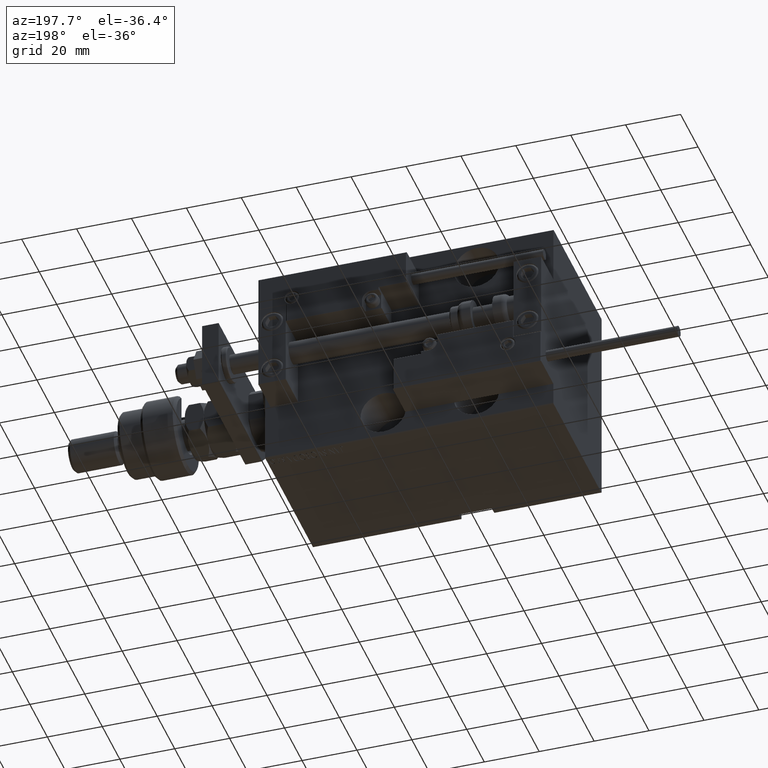
[diagram: clean part render]
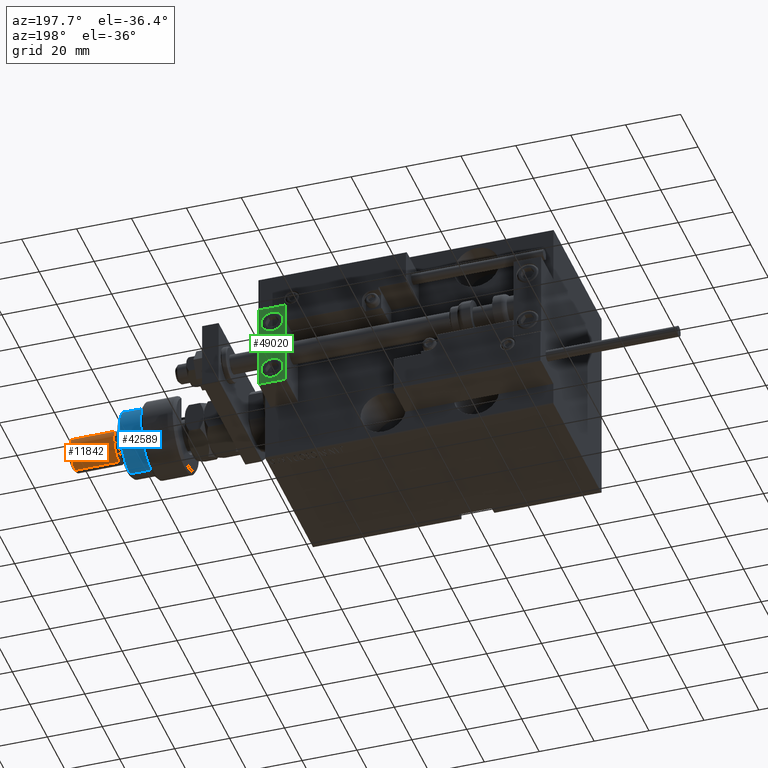
[diagram: same view with three faces highlighted in distinct colors, each labeled with its STEP entity id]
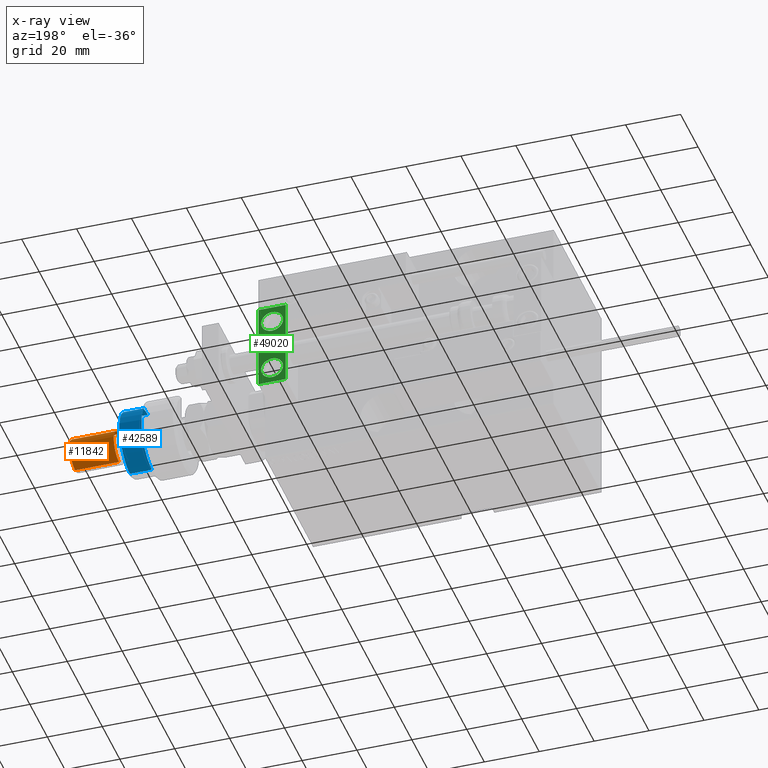
[diagram: x-ray of the same camera — body ghosted, the three highlighted faces saturated]
A machine part, auxiliary view with three faces highlighted in distinct colors.
The next image is the same camera in x-ray (body ghosted, the three faces saturated) — at least one of them is partly hidden behind the body in this view.
Their STEP definitions:

[orange] entity #11842 — the highlighted cylindrical surface (edge-blend (fillet) strip) has radius 6 mm, axis along (-1, -0, 0).
#4431 = VERTEX_POINT ( 'NONE', #51297 ) ;
#6143 = VERTEX_POINT ( 'NONE', #51937 ) ;
#9420 = AXIS2_PLACEMENT_3D ( 'NONE', #33751, #46865, #50084 ) ;
#10538 = ORIENTED_EDGE ( 'NONE', *, *, #32397, .F. ) ;
#11548 = DIRECTION ( 'NONE',  ( -0.000000000000000000, -0.000000000000000000, -1.000000000000000000 ) ) ;
#11842 = ADVANCED_FACE ( 'NONE', ( #25434 ), #18181, .T. ) ;
#12803 = CIRCLE ( 'NONE', #16218, 6.000000000000000888 ) ;
#12956 = DIRECTION ( 'NONE',  ( -0.000000000000000000, -0.000000000000000000, 1.000000000000000000 ) ) ;
#13351 = DIRECTION ( 'NONE',  ( -0.000000000000000000, -0.000000000000000000, -1.000000000000000000 ) ) ;
#15024 = LINE ( 'NONE', #31375, #16526 ) ;
#16218 = AXIS2_PLACEMENT_3D ( 'NONE', #44830, #12956, #49904 ) ;
#16526 = VECTOR ( 'NONE', #11548, 1000.000000000000000 ) ;
#18181 = CYLINDRICAL_SURFACE ( 'NONE', #9420, 6.000000000000000888 ) ;
#18900 = AXIS2_PLACEMENT_3D ( 'NONE', #34538, #34012, #30772 ) ;
#20516 = VERTEX_POINT ( 'NONE', #29184 ) ;
#23869 = VECTOR ( 'NONE', #13351, 1000.000000000000000 ) ;
#25434 = FACE_OUTER_BOUND ( 'NONE', #32472, .T. ) ;
#25938 = EDGE_CURVE ( 'NONE', #4431, #34535, #15024, .T. ) ;
#27790 = ORIENTED_EDGE ( 'NONE', *, *, #25938, .T. ) ;
#29184 = CARTESIAN_POINT ( 'NONE',  ( -6.000000000000000888, 0.000000000000000000, 24.99999999999999645 ) ) ;
#30772 = DIRECTION ( 'NONE',  ( 1.000000000000000000, 0.000000000000000000, 0.000000000000000000 ) ) ;
#31375 = CARTESIAN_POINT ( 'NONE',  ( 6.000000000000000888, 7.347880794884120722E-16, 41.99999999999999289 ) ) ;
#32397 = EDGE_CURVE ( 'NONE', #6143, #20516, #49770, .T. ) ;
#32472 = EDGE_LOOP ( 'NONE', ( #40247, #27790, #43140, #10538 ) ) ;
#33074 = EDGE_CURVE ( 'NONE', #34535, #20516, #12803, .T. ) ;
#33751 = CARTESIAN_POINT ( 'NONE',  ( 0.000000000000000000, 0.000000000000000000, 41.99999999999999289 ) ) ;
#34012 = DIRECTION ( 'NONE',  ( 0.000000000000000000, 0.000000000000000000, -1.000000000000000000 ) ) ;
#34535 = VERTEX_POINT ( 'NONE', #47884 ) ;
#34538 = CARTESIAN_POINT ( 'NONE',  ( 0.000000000000000000, 0.000000000000000000, 40.99999999999997868 ) ) ;
#37469 = CARTESIAN_POINT ( 'NONE',  ( -6.000000000000000888, 0.000000000000000000, 41.99999999999999289 ) ) ;
#39033 = EDGE_CURVE ( 'NONE', #6143, #4431, #42049, .T. ) ;
#40247 = ORIENTED_EDGE ( 'NONE', *, *, #39033, .T. ) ;
#42049 = CIRCLE ( 'NONE', #18900, 6.000000000000000888 ) ;
#43140 = ORIENTED_EDGE ( 'NONE', *, *, #33074, .T. ) ;
#44830 = CARTESIAN_POINT ( 'NONE',  ( 0.000000000000000000, 0.000000000000000000, 24.99999999999999645 ) ) ;
#46865 = DIRECTION ( 'NONE',  ( -0.000000000000000000, -0.000000000000000000, -1.000000000000000000 ) ) ;
#47884 = CARTESIAN_POINT ( 'NONE',  ( 6.000000000000000888, 7.347880794884120722E-16, 24.99999999999999645 ) ) ;
#49770 = LINE ( 'NONE', #37469, #23869 ) ;
#49904 = DIRECTION ( 'NONE',  ( 1.000000000000000000, 0.000000000000000000, 0.000000000000000000 ) ) ;
#50084 = DIRECTION ( 'NONE',  ( -1.000000000000000000, 0.000000000000000000, 0.000000000000000000 ) ) ;
#51297 = CARTESIAN_POINT ( 'NONE',  ( 6.000000000000000888, 7.347880794884120722E-16, 40.99999999999997868 ) ) ;
#51937 = CARTESIAN_POINT ( 'NONE',  ( -6.000000000000000888, 0.000000000000000000, 40.99999999999997868 ) ) ;

[blue] entity #42589 — the highlighted cylindrical surface (edge-blend (fillet) strip) has radius 12 mm, axis along (-1, -0, 0).
#5 = DIRECTION ( 'NONE',  ( 0.000000000000000000, 0.000000000000000000, -1.000000000000000000 ) ) ;
#263 = DIRECTION ( 'NONE',  ( 1.000000000000000000, 0.000000000000000000, 0.000000000000000000 ) ) ;
#461 = ORIENTED_EDGE ( 'NONE', *, *, #16028, .T. ) ;
#836 = VERTEX_POINT ( 'NONE', #22392 ) ;
#2521 = CIRCLE ( 'NONE', #14493, 12.00000000000000178 ) ;
#2984 = CARTESIAN_POINT ( 'NONE',  ( -12.00000000000000178, 0.000000000000000000, 14.50000000000000000 ) ) ;
#3244 = LINE ( 'NONE', #11811, #16994 ) ;
#4792 = CARTESIAN_POINT ( 'NONE',  ( -10.39230484541326582, 5.999999999999998224, 14.50000000000000000 ) ) ;
#6137 = ORIENTED_EDGE ( 'NONE', *, *, #31031, .F. ) ;
#6388 = FACE_OUTER_BOUND ( 'NONE', #22780, .T. ) ;
#7223 = CIRCLE ( 'NONE', #45736, 12.00000000000000178 ) ;
#7590 = VERTEX_POINT ( 'NONE', #18836 ) ;
#8457 = CARTESIAN_POINT ( 'NONE',  ( 0.000000000000000000, 0.000000000000000000, 14.50000000000000000 ) ) ;
#8562 = ORIENTED_EDGE ( 'NONE', *, *, #11011, .T. ) ;
#9709 = CARTESIAN_POINT ( 'NONE',  ( 0.000000000000000000, 0.000000000000000000, 13.00000000000000000 ) ) ;
#10238 = CARTESIAN_POINT ( 'NONE',  ( -10.39230484541326760, 6.000000000000000000, 22.00000000000000000 ) ) ;
#11011 = EDGE_CURVE ( 'NONE', #7590, #28032, #2521, .T. ) ;
#11079 = VECTOR ( 'NONE', #20437, 1000.000000000000000 ) ;
#11811 = CARTESIAN_POINT ( 'NONE',  ( -12.00000000000000178, 0.000000000000000000, 22.00000000000000000 ) ) ;
#13723 = VERTEX_POINT ( 'NONE', #16687 ) ;
#14430 = CARTESIAN_POINT ( 'NONE',  ( 0.000000000000000000, 0.000000000000000000, 22.00000000000000000 ) ) ;
#14493 = AXIS2_PLACEMENT_3D ( 'NONE', #20073, #5, #263 ) ;
#16028 = EDGE_CURVE ( 'NONE', #13723, #32388, #26311, .T. ) ;
#16111 = VERTEX_POINT ( 'NONE', #2984 ) ;
#16687 = CARTESIAN_POINT ( 'NONE',  ( -10.39230484541326760, 6.000000000000000000, 13.00000000000000000 ) ) ;
#16994 = VECTOR ( 'NONE', #35928, 1000.000000000000000 ) ;
#17919 = ORIENTED_EDGE ( 'NONE', *, *, #33086, .T. ) ;
#18004 = VECTOR ( 'NONE', #22026, 1000.000000000000000 ) ;
#18836 = CARTESIAN_POINT ( 'NONE',  ( -12.00000000000000178, 0.000000000000000000, 20.99999999999998224 ) ) ;
#19736 = DIRECTION ( 'NONE',  ( -1.000000000000000000, 0.000000000000000000, 0.000000000000000000 ) ) ;
#20073 = CARTESIAN_POINT ( 'NONE',  ( 0.000000000000000000, 0.000000000000000000, 20.99999999999998224 ) ) ;
#20431 = CIRCLE ( 'NONE', #36715, 12.00000000000000178 ) ;
#20437 = DIRECTION ( 'NONE',  ( -0.000000000000000000, -0.000000000000000000, -1.000000000000000000 ) ) ;
#22017 = DIRECTION ( 'NONE',  ( 1.000000000000000000, 0.000000000000000000, 0.000000000000000000 ) ) ;
#22026 = DIRECTION ( 'NONE',  ( 0.000000000000000000, 0.000000000000000000, 1.000000000000000000 ) ) ;
#22392 = CARTESIAN_POINT ( 'NONE',  ( 12.00000000000000178, 1.469576158976824144E-15, 13.00000000000000000 ) ) ;
#22780 = EDGE_LOOP ( 'NONE', ( #8562, #17919, #25471, #461, #41834, #6137 ) ) ;
#24731 = LINE ( 'NONE', #45367, #11079 ) ;
#25152 = EDGE_CURVE ( 'NONE', #836, #13723, #7223, .T. ) ;
#25471 = ORIENTED_EDGE ( 'NONE', *, *, #25152, .T. ) ;
#26311 = LINE ( 'NONE', #10238, #18004 ) ;
#28032 = VERTEX_POINT ( 'NONE', #49100 ) ;
#30766 = DIRECTION ( 'NONE',  ( -0.000000000000000000, -0.000000000000000000, -1.000000000000000000 ) ) ;
#30802 = EDGE_CURVE ( 'NONE', #16111, #32388, #20431, .T. ) ;
#31031 = EDGE_CURVE ( 'NONE', #7590, #16111, #3244, .T. ) ;
#32299 = DIRECTION ( 'NONE',  ( 0.000000000000000000, 0.000000000000000000, -1.000000000000000000 ) ) ;
#32388 = VERTEX_POINT ( 'NONE', #4792 ) ;
#33086 = EDGE_CURVE ( 'NONE', #28032, #836, #24731, .T. ) ;
#35572 = CYLINDRICAL_SURFACE ( 'NONE', #50701, 12.00000000000000178 ) ;
#35928 = DIRECTION ( 'NONE',  ( -0.000000000000000000, -0.000000000000000000, -1.000000000000000000 ) ) ;
#36715 = AXIS2_PLACEMENT_3D ( 'NONE', #8457, #32299, #45682 ) ;
#37578 = DIRECTION ( 'NONE',  ( 0.000000000000000000, 0.000000000000000000, 1.000000000000000000 ) ) ;
#41834 = ORIENTED_EDGE ( 'NONE', *, *, #30802, .F. ) ;
#42589 = ADVANCED_FACE ( 'NONE', ( #6388 ), #35572, .T. ) ;
#45367 = CARTESIAN_POINT ( 'NONE',  ( 12.00000000000000178, 1.469576158976824144E-15, 22.00000000000000000 ) ) ;
#45682 = DIRECTION ( 'NONE',  ( -1.000000000000000000, 0.000000000000000000, 0.000000000000000000 ) ) ;
#45736 = AXIS2_PLACEMENT_3D ( 'NONE', #9709, #37578, #22017 ) ;
#49100 = CARTESIAN_POINT ( 'NONE',  ( 12.00000000000000178, 1.469576158976824144E-15, 20.99999999999998224 ) ) ;
#50701 = AXIS2_PLACEMENT_3D ( 'NONE', #14430, #30766, #19736 ) ;

[green] entity #49020 — the highlighted planar face has unit normal (0, 1, 0).
#582 = VERTEX_POINT ( 'NONE', #7967 ) ;
#2286 = DIRECTION ( 'NONE',  ( 0.000000000000000000, 0.000000000000000000, 1.000000000000000000 ) ) ;
#2693 = VERTEX_POINT ( 'NONE', #9262 ) ;
#3612 = ORIENTED_EDGE ( 'NONE', *, *, #27616, .F. ) ;
#4063 = CARTESIAN_POINT ( 'NONE',  ( 5.000000000000000888, 7.000000000000000888, 14.00000000000000178 ) ) ;
#4656 = DIRECTION ( 'NONE',  ( 0.000000000000000000, -0.000000000000000000, 1.000000000000000000 ) ) ;
#4688 = VERTEX_POINT ( 'NONE', #13278 ) ;
#6166 = CARTESIAN_POINT ( 'NONE',  ( 5.000000000000000888, 6.999999999999999112, -10.00000000000000178 ) ) ;
#6375 = CARTESIAN_POINT ( 'NONE',  ( 5.000000000000000888, 7.000000000000000888, 10.00000000000000178 ) ) ;
#6710 = EDGE_CURVE ( 'NONE', #47243, #13966, #30603, .T. ) ;
#6885 = AXIS2_PLACEMENT_3D ( 'NONE', #34559, #14199, #50102 ) ;
#7185 = ORIENTED_EDGE ( 'NONE', *, *, #50116, .T. ) ;
#7967 = CARTESIAN_POINT ( 'NONE',  ( 0.000000000000000000, 7.000000000000000000, -16.00000000000000711 ) ) ;
#8404 = FACE_OUTER_BOUND ( 'NONE', #27396, .T. ) ;
#8668 = CARTESIAN_POINT ( 'NONE',  ( 10.00000000000000000, 7.000000000000000000, 15.99999999999999289 ) ) ;
#8962 = CARTESIAN_POINT ( 'NONE',  ( 10.00000000000000000, 7.000000000000000000, 15.99999999999999289 ) ) ;
#9262 = CARTESIAN_POINT ( 'NONE',  ( 10.00000000000000000, 7.000000000000000000, 15.99999999999999289 ) ) ;
#10008 = DIRECTION ( 'NONE',  ( -1.000000000000000000, -0.000000000000000000, -0.000000000000000000 ) ) ;
#10293 = CIRCLE ( 'NONE', #6885, 4.000000000000000888 ) ;
#10398 = EDGE_CURVE ( 'NONE', #2693, #19728, #24217, .T. ) ;
#11560 = EDGE_CURVE ( 'NONE', #19728, #582, #36709, .T. ) ;
#11847 = AXIS2_PLACEMENT_3D ( 'NONE', #6375, #22442, #51618 ) ;
#13278 = CARTESIAN_POINT ( 'NONE',  ( 5.000000000000001776, 6.999999999999999112, -14.00000000000000178 ) ) ;
#13966 = VERTEX_POINT ( 'NONE', #4063 ) ;
#14199 = DIRECTION ( 'NONE',  ( 0.000000000000000000, 1.000000000000000000, -6.065466699219605527E-17 ) ) ;
#15715 = CIRCLE ( 'NONE', #45689, 4.000000000000000888 ) ;
#16319 = EDGE_CURVE ( 'NONE', #4688, #39809, #10293, .T. ) ;
#17762 = CARTESIAN_POINT ( 'NONE',  ( 10.00000000000000000, 7.000000000000000000, -16.00000000000000711 ) ) ;
#18292 = CARTESIAN_POINT ( 'NONE',  ( 5.000000000000001776, 7.000000000000000888, 6.000000000000000888 ) ) ;
#18713 = VECTOR ( 'NONE', #48767, 1000.000000000000000 ) ;
#19563 = CARTESIAN_POINT ( 'NONE',  ( 10.00000000000000000, 7.000000000000000000, 15.99999999999999289 ) ) ;
#19728 = VERTEX_POINT ( 'NONE', #36379 ) ;
#20972 = FACE_BOUND ( 'NONE', #38695, .T. ) ;
#21009 = ORIENTED_EDGE ( 'NONE', *, *, #29881, .T. ) ;
#21265 = DIRECTION ( 'NONE',  ( -1.000000000000000000, -0.000000000000000000, -0.000000000000000000 ) ) ;
#21348 = ORIENTED_EDGE ( 'NONE', *, *, #31078, .T. ) ;
#22442 = DIRECTION ( 'NONE',  ( 1.848892746611746419E-32, -1.000000000000000000, 6.616381192988677562E-17 ) ) ;
#24217 = LINE ( 'NONE', #8962, #47872 ) ;
#24886 = ORIENTED_EDGE ( 'NONE', *, *, #11560, .F. ) ;
#27396 = EDGE_LOOP ( 'NONE', ( #24886, #37618, #21348, #7185 ) ) ;
#27616 = EDGE_CURVE ( 'NONE', #39809, #4688, #15715, .T. ) ;
#28128 = DIRECTION ( 'NONE',  ( 0.000000000000000000, 0.000000000000000000, -1.000000000000000000 ) ) ;
#28146 = LINE ( 'NONE', #19563, #18713 ) ;
#28713 = VERTEX_POINT ( 'NONE', #31854 ) ;
#29881 = EDGE_CURVE ( 'NONE', #13966, #47243, #31511, .T. ) ;
#30603 = CIRCLE ( 'NONE', #41748, 4.000000000000000000 ) ;
#30688 = CARTESIAN_POINT ( 'NONE',  ( 5.000000000000000888, 7.000000000000000888, 10.00000000000000178 ) ) ;
#30798 = DIRECTION ( 'NONE',  ( 0.000000000000000000, 0.000000000000000000, 1.000000000000000000 ) ) ;
#31078 = EDGE_CURVE ( 'NONE', #2693, #28713, #28146, .T. ) ;
#31511 = CIRCLE ( 'NONE', #11847, 4.000000000000000000 ) ;
#31854 = CARTESIAN_POINT ( 'NONE',  ( 10.00000000000000000, 7.000000000000000000, -16.00000000000000711 ) ) ;
#32501 = VECTOR ( 'NONE', #28128, 1000.000000000000000 ) ;
#34559 = CARTESIAN_POINT ( 'NONE',  ( 5.000000000000000888, 6.999999999999999112, -10.00000000000000178 ) ) ;
#35763 = EDGE_LOOP ( 'NONE', ( #3612, #44017 ) ) ;
#36379 = CARTESIAN_POINT ( 'NONE',  ( 0.000000000000000000, 7.000000000000000000, 15.99999999999999289 ) ) ;
#36709 = LINE ( 'NONE', #45539, #32501 ) ;
#37618 = ORIENTED_EDGE ( 'NONE', *, *, #10398, .F. ) ;
#38695 = EDGE_LOOP ( 'NONE', ( #21009, #46310 ) ) ;
#39752 = VECTOR ( 'NONE', #10008, 1000.000000000000000 ) ;
#39809 = VERTEX_POINT ( 'NONE', #40927 ) ;
#40927 = CARTESIAN_POINT ( 'NONE',  ( 5.000000000000000888, 6.999999999999999112, -6.000000000000000888 ) ) ;
#41083 = FACE_BOUND ( 'NONE', #35763, .T. ) ;
#41348 = DIRECTION ( 'NONE',  ( -0.000000000000000000, 1.000000000000000000, 0.000000000000000000 ) ) ;
#41748 = AXIS2_PLACEMENT_3D ( 'NONE', #30688, #50784, #2286 ) ;
#42950 = LINE ( 'NONE', #17762, #39752 ) ;
#44017 = ORIENTED_EDGE ( 'NONE', *, *, #16319, .F. ) ;
#44112 = AXIS2_PLACEMENT_3D ( 'NONE', #8668, #41348, #4656 ) ;
#45361 = PLANE ( 'NONE',  #44112 ) ;
#45539 = CARTESIAN_POINT ( 'NONE',  ( 0.000000000000000000, 7.000000000000000000, 15.99999999999999289 ) ) ;
#45689 = AXIS2_PLACEMENT_3D ( 'NONE', #6166, #51402, #30798 ) ;
#46310 = ORIENTED_EDGE ( 'NONE', *, *, #6710, .T. ) ;
#47243 = VERTEX_POINT ( 'NONE', #18292 ) ;
#47872 = VECTOR ( 'NONE', #21265, 1000.000000000000000 ) ;
#48767 = DIRECTION ( 'NONE',  ( 0.000000000000000000, 0.000000000000000000, -1.000000000000000000 ) ) ;
#49020 = ADVANCED_FACE ( 'NONE', ( #8404, #41083, #20972 ), #45361, .T. ) ;
#50102 = DIRECTION ( 'NONE',  ( 0.000000000000000000, 0.000000000000000000, 1.000000000000000000 ) ) ;
#50116 = EDGE_CURVE ( 'NONE', #28713, #582, #42950, .T. ) ;
#50784 = DIRECTION ( 'NONE',  ( 1.848892746611746419E-32, -1.000000000000000000, 6.616381192988677562E-17 ) ) ;
#51402 = DIRECTION ( 'NONE',  ( 0.000000000000000000, 1.000000000000000000, -6.065466699219605527E-17 ) ) ;
#51618 = DIRECTION ( 'NONE',  ( 0.000000000000000000, 0.000000000000000000, 1.000000000000000000 ) ) ;